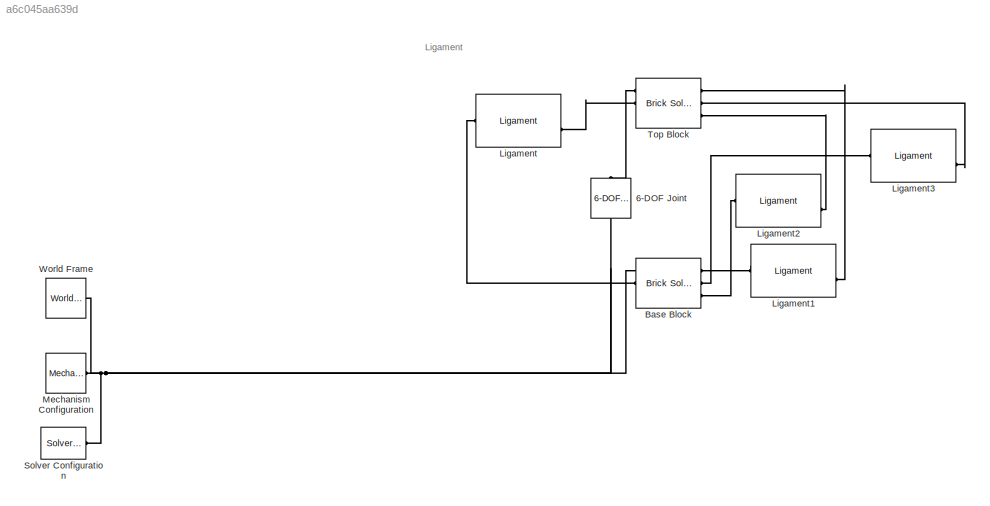
MODEL slx_a6c045aa639d
KIND model
CONFIG AbsTol = auto
CONFIG EnableMultiTasking = off
CONFIG FixedStep = auto
CONFIG MaxStep = auto
CONFIG MinStep = auto
CONFIG RelTol = 1e-3
CONFIG SampleTimeConstraint = Unconstrained
CONFIG SolverName = VariableStepAuto
CONFIG StartTime = 0.0
CONFIG StopTime = 10
BLOCK [Reference] 6-DOF Joint  REF=sm_lib/Joints/6-DOF Joint
  NameLocation = right
  Ports = [0, 0, 0, 0, 0, 1, 1]
  SourceBlock = sm_lib/Joints/6-DOF Joint
  SourceProductBaseCode = MS
  SourceType = 6-DOF Joint
BLOCK [Reference] Base Block  REF=sm_lib/Body Elements/Brick Solid
  Ports = [0, 0, 0, 0, 0, 3, 3]
  SourceBlock = sm_lib/Body Elements/Brick Solid
  SourceProductBaseCode = MS
  SourceType = Brick Solid
BLOCK [Reference] Ligament  REF=mesh_assembly_library/Ligament  (lib defined in slx_494895e53eb4)
  Ports = [0, 1, 0, 0, 0, 1, 1]
  SourceBlock = mesh_assembly_library/Ligament
BLOCK [Reference] Ligament1  REF=mesh_assembly_library/Ligament  (lib defined in slx_494895e53eb4)
  Ports = [0, 1, 0, 0, 0, 1, 1]
  SourceBlock = mesh_assembly_library/Ligament
BLOCK [Reference] Ligament2  REF=mesh_assembly_library/Ligament  (lib defined in slx_494895e53eb4)
  Ports = [0, 1, 0, 0, 0, 1, 1]
  SourceBlock = mesh_assembly_library/Ligament
BLOCK [Reference] Ligament3  REF=mesh_assembly_library/Ligament  (lib defined in slx_494895e53eb4)
  Ports = [0, 1, 0, 0, 0, 1, 1]
  SourceBlock = mesh_assembly_library/Ligament
BLOCK [Reference] Mechanism Configuration  REF=sm_lib/Utilities/Mechanism
Configuration
  Ports = [0, 0, 0, 0, 0, 0, 1]
  SourceBlock = sm_lib/Utilities/Mechanism\nConfiguration
  SourceProductBaseCode = MS
  SourceType = Mechanism\nConfiguration
BLOCK [Reference] Solver Configuration  REF=nesl_utility/Solver
Configuration
  Ports = [0, 0, 0, 0, 0, 0, 1]
  SourceBlock = nesl_utility/Solver\nConfiguration
  SourceProductBaseCode = PW,SS
  SourceType = Solver\nConfiguration
BLOCK [Reference] Top Block  REF=sm_lib/Body Elements/Brick Solid
  Ports = [0, 0, 0, 0, 0, 3, 3]
  SourceBlock = sm_lib/Body Elements/Brick Solid
  SourceProductBaseCode = MS
  SourceType = Brick Solid
BLOCK [Reference] World Frame  REF=sm_lib/Frames and
Transforms/World Frame
  Ports = [0, 0, 0, 0, 0, 0, 1]
  SourceBlock = sm_lib/Frames and\nTransforms/World Frame
  SourceProductBaseCode = MS
  SourceType = World Frame
ANNOTATION (root): Ligament
PNET net1: 6-DOF Joint:LConn1 -- Base Block:RConn1 -- Mechanism Configuration:RConn1 -- Solver Configuration:RConn1 -- World Frame:RConn1
PLINE 6-DOF Joint:RConn1 -- Top Block:RConn1
PLINE Base Block:LConn1 -- Ligament1:LConn1
PLINE Base Block:LConn2 -- Ligament3:LConn1
PLINE Base Block:LConn3 -- Ligament2:LConn1
PLINE Base Block:RConn2 -- Ligament:LConn1
PLINE Ligament1:RConn1 -- Top Block:LConn1
PLINE Ligament2:RConn1 -- Top Block:LConn3
PLINE Ligament3:RConn1 -- Top Block:LConn2
PLINE Ligament:RConn1 -- Top Block:RConn2
note: PNET lines group multi-terminal physical nets as a canonical sorted terminal list (undirected conserving connections); 2-terminal nets keep the pairwise PLINE form
